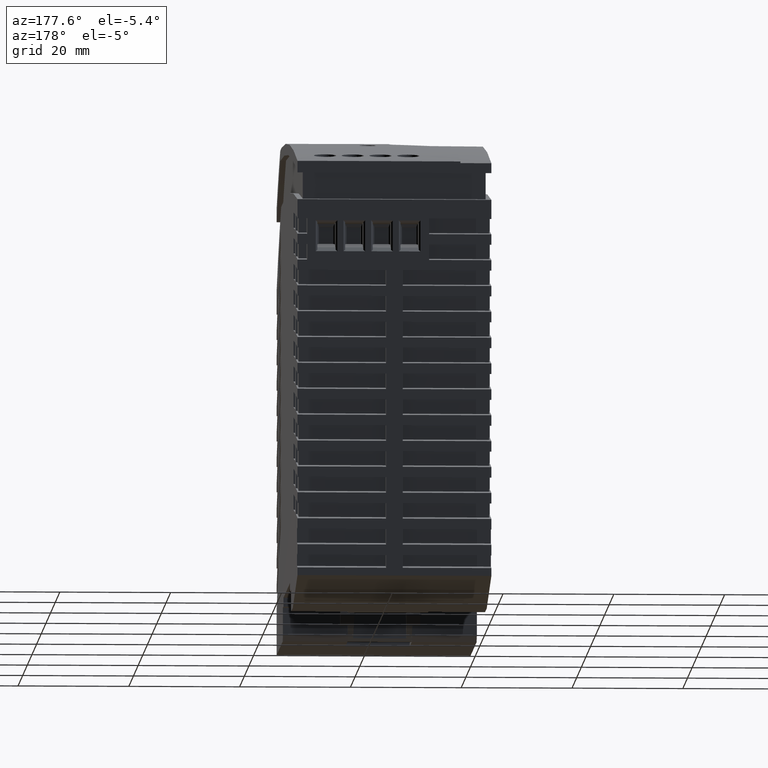
[diagram: clean part render]
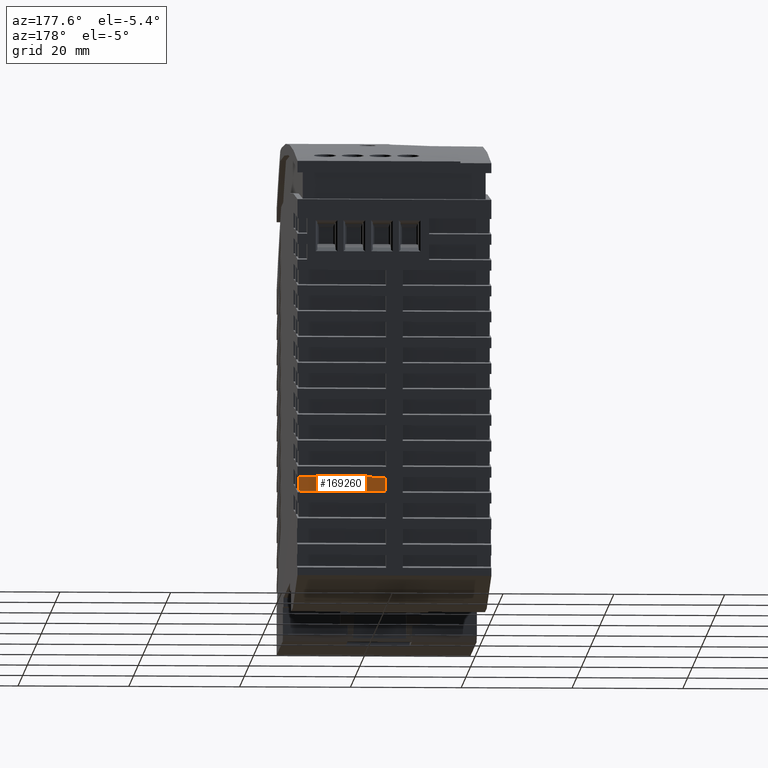
[diagram: same view with one face highlighted and labeled with its STEP entity id]
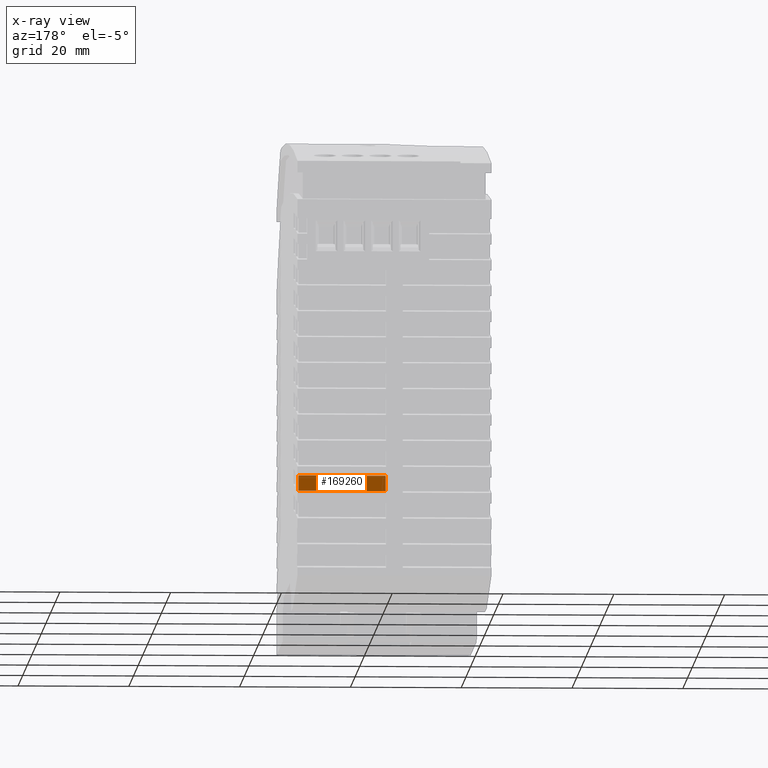
[diagram: x-ray of the same camera — body ghosted, the highlighted face saturated]
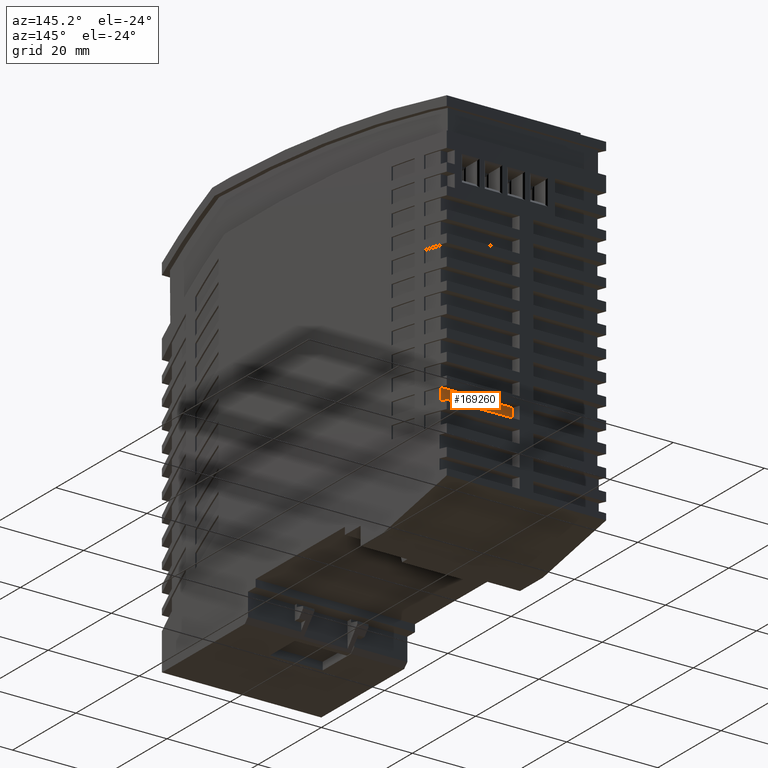
[diagram: same view with one face highlighted and labeled with its STEP entity id]
A machine part, auxiliary view. The second image highlights one B-rep face of the part: STEP entity #169260.
The next image is the same camera in x-ray: the body ghosted, the highlighted face saturated — about 0% of this face is hidden behind the body in this view.
A second angle (auxiliary view) of the same face is appended — the face is thin or edge-on in the first view.
In plain terms, the highlighted planar face has unit normal (0, -1, 0).
Its self-contained STEP definition (entity closure, byte-faithful):
#127180=CARTESIAN_POINT('',(42.6984763926292,24.2981096634629,13.2));
#127190=VERTEX_POINT('',#127180);
#127220=CARTESIAN_POINT('',(42.6984763926292,0.,13.2));
#127230=DIRECTION('',(0.,-1.,0.));
#127240=VECTOR('',#127230,1.);
#127250=LINE('',#127220,#127240);
#127260=CARTESIAN_POINT('',(42.6984763926292,21.5030477982668,13.2));
#127270=VERTEX_POINT('',#127260);
#127280=EDGE_CURVE('',#127190,#127270,#127250,.T.);
#162040=CARTESIAN_POINT('',(42.6984763926292,24.2981096634629,-2.5));
#162050=VERTEX_POINT('',#162040);
#162080=CARTESIAN_POINT('',(42.698476392629,24.2981096634629,6.95));
#162090=DIRECTION('',(0.,0.,-1.));
#162100=VECTOR('',#162090,1.);
#162110=LINE('',#162080,#162100);
#162120=EDGE_CURVE('',#127190,#162050,#162110,.T.);
#169030=CARTESIAN_POINT('',(42.6984763926292,21.503047798267,-12.5));
#169040=DIRECTION('',(-1.,0.,0.));
#169050=DIRECTION('',(0.,1.,0.));
#169060=AXIS2_PLACEMENT_3D('',#169030,#169040,#169050);
#169070=PLANE('',#169060);
#169080=ORIENTED_EDGE('',*,*,#162120,.F.);
#169090=CARTESIAN_POINT('',(42.6984763926292,0.,-2.5));
#169100=DIRECTION('',(0.,1.,0.));
#169110=VECTOR('',#169100,1.);
#169120=LINE('',#169090,#169110);
#169130=CARTESIAN_POINT('',(42.6984763926292,21.5030477982668,-2.5));
#169140=VERTEX_POINT('',#169130);
#169150=EDGE_CURVE('',#169140,#162050,#169120,.T.);
#169160=ORIENTED_EDGE('',*,*,#169150,.T.);
#169170=CARTESIAN_POINT('',(42.6984763926292,21.5030477982668,13.2));
#169180=DIRECTION('',(0.,0.,1.));
#169190=VECTOR('',#169180,1.);
#169200=LINE('',#169170,#169190);
#169210=EDGE_CURVE('',#169140,#127270,#169200,.T.);
#169220=ORIENTED_EDGE('',*,*,#169210,.F.);
#169230=ORIENTED_EDGE('',*,*,#127280,.T.);
#169240=EDGE_LOOP('',(#169230,#169220,#169160,#169080));
#169250=FACE_OUTER_BOUND('',#169240,.T.);
#169260=ADVANCED_FACE('',(#169250),#169070,.F.);